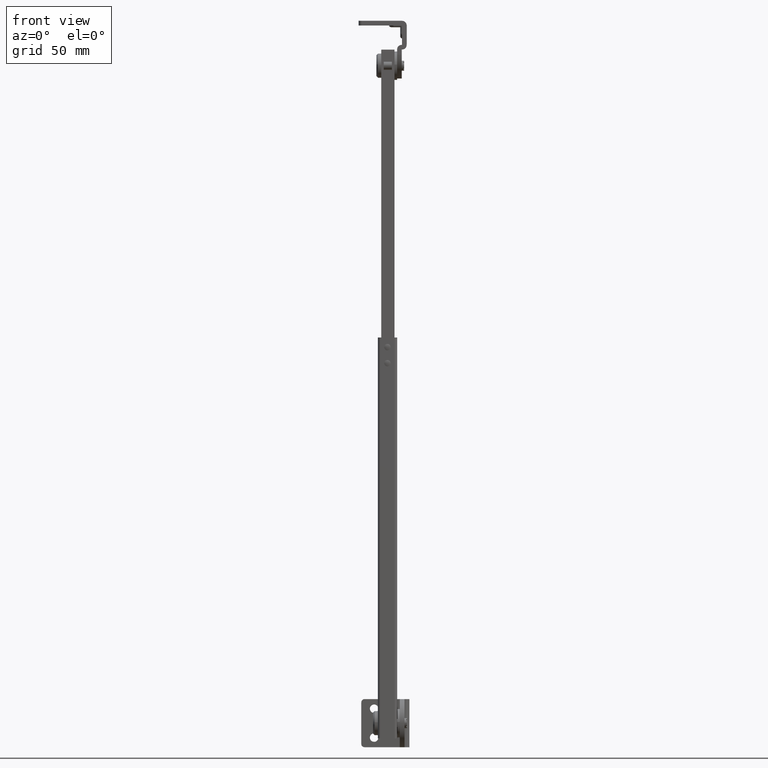
[diagram: clean part render]
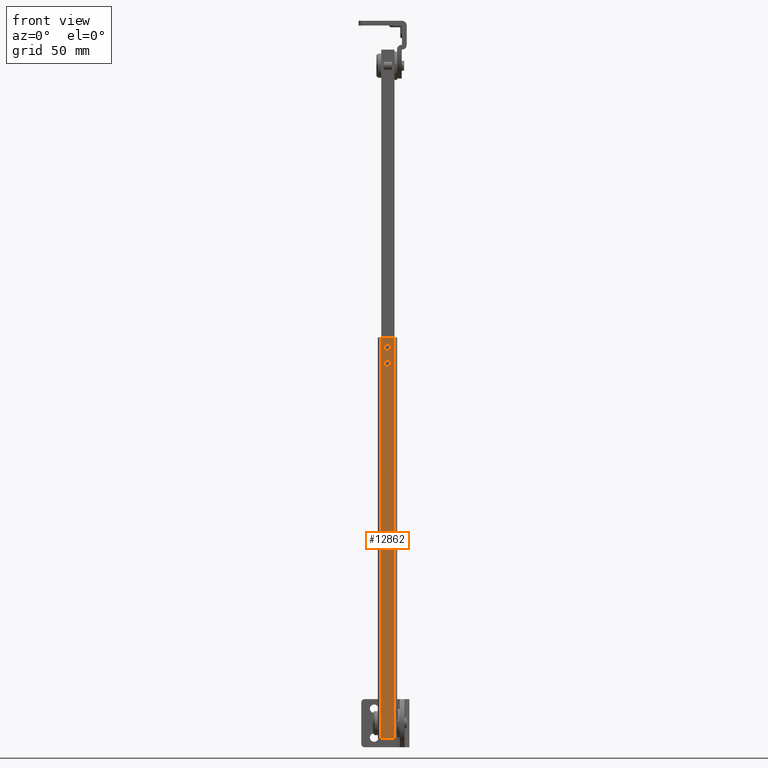
[diagram: same view with one face highlighted and labeled with its STEP entity id]
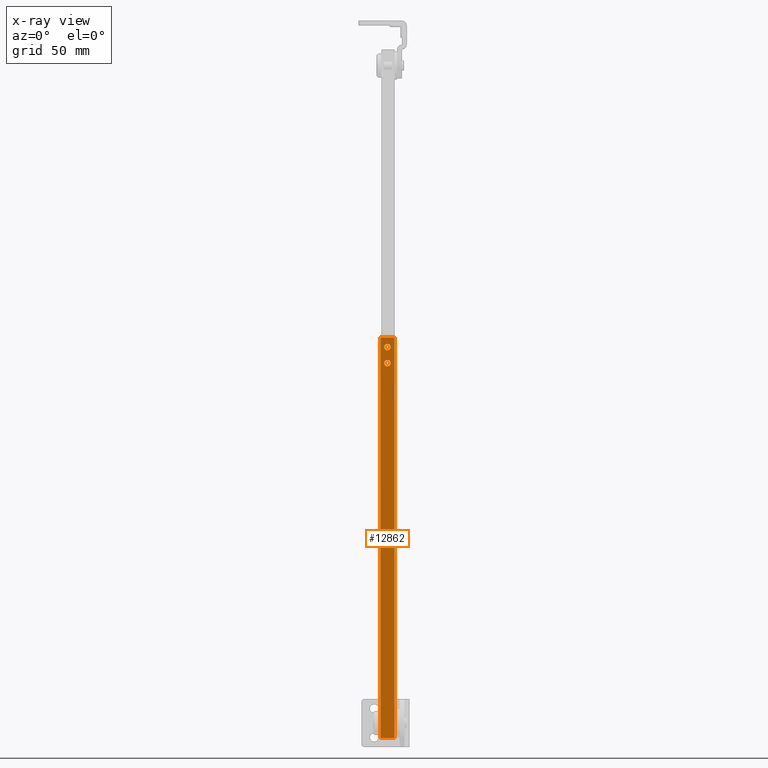
[diagram: x-ray of the same camera — body ghosted, the highlighted face saturated]
A machine part, front view. The second image highlights one B-rep face of the part: STEP entity #12862.
The next image is the same camera in x-ray: the body ghosted, the highlighted face saturated — about 0% of this face is hidden behind the body in this view.
In plain terms, the highlighted face is a freeform B-spline surface patch.
Its self-contained STEP definition (entity closure, byte-faithful):
#11873=CARTESIAN_POINT('',(-13.699996999999900,-12.500000000000000,222.500000000000000));
#11874=VERTEX_POINT('',#11873);
#11875=CARTESIAN_POINT('',(-13.699996999999900,-12.500000000000000,226.500000000000000));
#11876=VERTEX_POINT('',#11875);
#11877=CARTESIAN_POINT('',(-13.699996999999900,-12.500000000000000,222.500000000000000));
#11878=CARTESIAN_POINT('',(-15.699996999999897,-12.500000000000000,222.499999999999940));
#11879=CARTESIAN_POINT('',(-15.699996999999900,-12.500000000000000,224.500000000000000));
#11880=CARTESIAN_POINT('',(-15.699996999999897,-12.500000000000000,226.500000000000110));
#11881=CARTESIAN_POINT('',(-13.699996999999900,-12.500000000000000,226.500000000000000));
#11889=(BOUNDED_CURVE()B_SPLINE_CURVE(2,(#11877,#11878,#11879,#11880,#11881),.UNSPECIFIED.,.F.,.U.)B_SPLINE_CURVE_WITH_KNOTS((3,2,3),(0.500000000000000,0.750000000000000,1.0),.UNSPECIFIED.)CURVE()GEOMETRIC_REPRESENTATION_ITEM()RATIONAL_B_SPLINE_CURVE((1.0,0.707106781186548,1.0,0.707106781186548,1.0))REPRESENTATION_ITEM(''));
#11890=EDGE_CURVE('',#11874,#11876,#11889,.T.);
#11892=CARTESIAN_POINT('',(-13.699996999999900,-12.500000000000000,226.500000000000000));
#11893=CARTESIAN_POINT('',(-11.699996999999900,-12.500000000000000,226.500000000000110));
#11894=CARTESIAN_POINT('',(-11.699996999999900,-12.500000000000000,224.500000000000000));
#11895=CARTESIAN_POINT('',(-11.699996999999900,-12.500000000000000,222.499999999999940));
#11896=CARTESIAN_POINT('',(-13.699996999999900,-12.500000000000000,222.500000000000000));
#11904=(BOUNDED_CURVE()B_SPLINE_CURVE(2,(#11892,#11893,#11894,#11895,#11896),.UNSPECIFIED.,.F.,.U.)B_SPLINE_CURVE_WITH_KNOTS((3,2,3),(0.0,0.250000000000000,0.500000000000000),.UNSPECIFIED.)CURVE()GEOMETRIC_REPRESENTATION_ITEM()RATIONAL_B_SPLINE_CURVE((1.0,0.707106781186548,1.0,0.707106781186548,1.0))REPRESENTATION_ITEM(''));
#11905=EDGE_CURVE('',#11876,#11874,#11904,.T.);
#11934=CARTESIAN_POINT('',(-13.699996999999900,-12.500000000000000,232.500000000000000));
#11935=VERTEX_POINT('',#11934);
#11936=CARTESIAN_POINT('',(-13.699996999999900,-12.500000000000000,236.500000000000000));
#11937=VERTEX_POINT('',#11936);
#11938=CARTESIAN_POINT('',(-13.699996999999900,-12.500000000000000,232.500000000000000));
#11939=CARTESIAN_POINT('',(-15.699996999999897,-12.500000000000000,232.499999999999970));
#11940=CARTESIAN_POINT('',(-15.699996999999900,-12.500000000000000,234.500000000000000));
#11941=CARTESIAN_POINT('',(-15.699996999999897,-12.500000000000000,236.500000000000000));
#11942=CARTESIAN_POINT('',(-13.699996999999900,-12.500000000000000,236.500000000000000));
#11950=(BOUNDED_CURVE()B_SPLINE_CURVE(2,(#11938,#11939,#11940,#11941,#11942),.UNSPECIFIED.,.F.,.U.)B_SPLINE_CURVE_WITH_KNOTS((3,2,3),(0.500000000000000,0.750000000000000,1.0),.UNSPECIFIED.)CURVE()GEOMETRIC_REPRESENTATION_ITEM()RATIONAL_B_SPLINE_CURVE((1.0,0.707106781186548,1.0,0.707106781186548,1.0))REPRESENTATION_ITEM(''));
#11951=EDGE_CURVE('',#11935,#11937,#11950,.T.);
#11953=CARTESIAN_POINT('',(-13.699996999999900,-12.500000000000000,236.500000000000000));
#11954=CARTESIAN_POINT('',(-11.699996999999900,-12.500000000000000,236.500000000000000));
#11955=CARTESIAN_POINT('',(-11.699996999999900,-12.500000000000000,234.500000000000000));
#11956=CARTESIAN_POINT('',(-11.699996999999900,-12.500000000000000,232.499999999999970));
#11957=CARTESIAN_POINT('',(-13.699996999999900,-12.500000000000000,232.500000000000000));
#11965=(BOUNDED_CURVE()B_SPLINE_CURVE(2,(#11953,#11954,#11955,#11956,#11957),.UNSPECIFIED.,.F.,.U.)B_SPLINE_CURVE_WITH_KNOTS((3,2,3),(0.0,0.250000000000000,0.500000000000000),.UNSPECIFIED.)CURVE()GEOMETRIC_REPRESENTATION_ITEM()RATIONAL_B_SPLINE_CURVE((1.0,0.707106781186548,1.0,0.707106781186548,1.0))REPRESENTATION_ITEM(''));
#11966=EDGE_CURVE('',#11937,#11935,#11965,.T.);
#12332=CARTESIAN_POINT('',(-9.297458178661950,-12.500000000000000,-9.500000000000000));
#12333=VERTEX_POINT('',#12332);
#12347=CARTESIAN_POINT('',(-18.099991083775699,-12.500002000000000,-9.500000000000000));
#12348=VERTEX_POINT('',#12347);
#12349=CARTESIAN_POINT('',(-18.099991083775699,-12.500002000000000,-9.500000000000000));
#12350=CARTESIAN_POINT('',(-9.297458178661950,-12.500000000000000,-9.500000000000000));
#12351=QUASI_UNIFORM_CURVE('',1,(#12349,#12350),.UNSPECIFIED.,.F.,.U.);
#12352=EDGE_CURVE('',#12348,#12333,#12351,.T.);
#12484=CARTESIAN_POINT('',(-18.099991083775699,-12.500001999999959,240.500000000000000));
#12485=VERTEX_POINT('',#12484);
#12499=CARTESIAN_POINT('',(-9.297458178661950,-12.500000000000000,240.500000000000000));
#12500=VERTEX_POINT('',#12499);
#12501=CARTESIAN_POINT('',(-18.099991083775699,-12.500001999999959,240.500000000000000));
#12502=CARTESIAN_POINT('',(-9.297458178661950,-12.500000000000000,240.500000000000000));
#12503=QUASI_UNIFORM_CURVE('',1,(#12501,#12502),.UNSPECIFIED.,.F.,.U.);
#12504=EDGE_CURVE('',#12485,#12500,#12503,.T.);
#12640=CARTESIAN_POINT('',(-9.297458178661950,-12.500000000000000,240.500000000000000));
#12641=CARTESIAN_POINT('',(-9.297458178661950,-12.500000000000000,-9.500000000000000));
#12642=QUASI_UNIFORM_CURVE('',1,(#12640,#12641),.UNSPECIFIED.,.F.,.U.);
#12643=EDGE_CURVE('',#12500,#12333,#12642,.T.);
#12663=CARTESIAN_POINT('',(-18.099991083775699,-12.500001999999959,240.500000000000000));
#12664=CARTESIAN_POINT('',(-18.099991083775699,-12.500002000000000,-9.500000000000000));
#12665=QUASI_UNIFORM_CURVE('',1,(#12663,#12664),.UNSPECIFIED.,.F.,.U.);
#12666=EDGE_CURVE('',#12485,#12348,#12665,.T.);
#12843=CARTESIAN_POINT('',(-8.857772204352651,-12.499999999999879,-21.987499515451479));
#12844=CARTESIAN_POINT('',(-8.857772204352651,-12.499999999999879,252.987506220974010));
#12845=CARTESIAN_POINT('',(-18.539677136785780,-12.499999999999879,-21.987499515451479));
#12846=CARTESIAN_POINT('',(-18.539677136785780,-12.499999999999879,252.987506220974010));
#12847=B_SPLINE_SURFACE_WITH_KNOTS('',1,1,((#12843,#12845),(#12844,#12846)),.UNSPECIFIED.,.F.,.F.,.U.,(2,2),(2,2),(0.0,274.975005736425490),(0.0,9.681904932433126),.UNSPECIFIED.);
#12848=ORIENTED_EDGE('',*,*,#12352,.T.);
#12849=ORIENTED_EDGE('',*,*,#12643,.F.);
#12850=ORIENTED_EDGE('',*,*,#12504,.F.);
#12851=ORIENTED_EDGE('',*,*,#12666,.T.);
#12852=EDGE_LOOP('',(#12848,#12849,#12850,#12851));
#12853=FACE_OUTER_BOUND('',#12852,.T.);
#12854=ORIENTED_EDGE('',*,*,#11966,.T.);
#12855=ORIENTED_EDGE('',*,*,#11951,.T.);
#12856=EDGE_LOOP('',(#12854,#12855));
#12857=FACE_BOUND('',#12856,.T.);
#12858=ORIENTED_EDGE('',*,*,#11905,.T.);
#12859=ORIENTED_EDGE('',*,*,#11890,.T.);
#12860=EDGE_LOOP('',(#12858,#12859));
#12861=FACE_BOUND('',#12860,.T.);
#12862=ADVANCED_FACE('',(#12853,#12857,#12861),#12847,.T.);